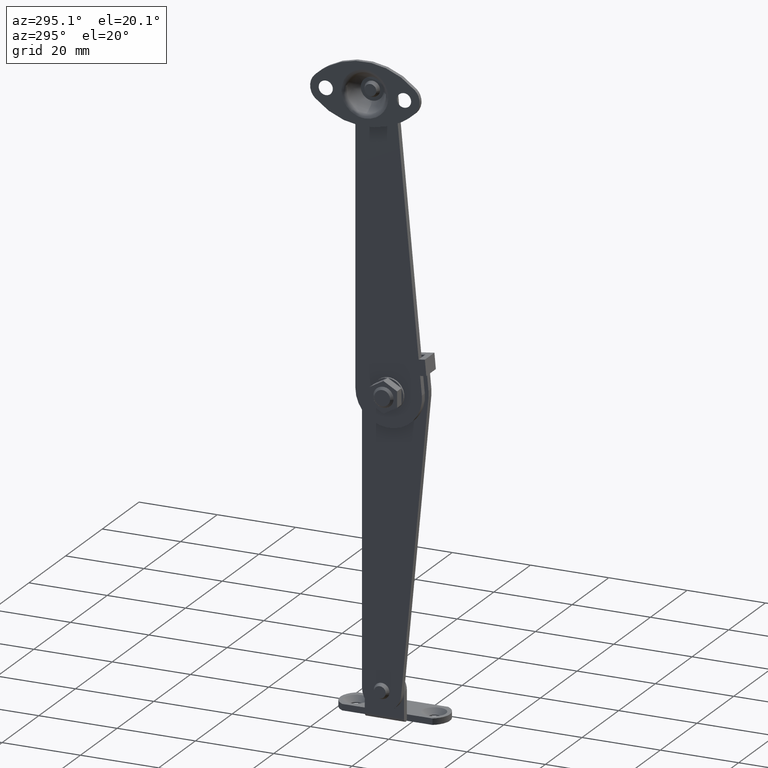
[diagram: clean part render]
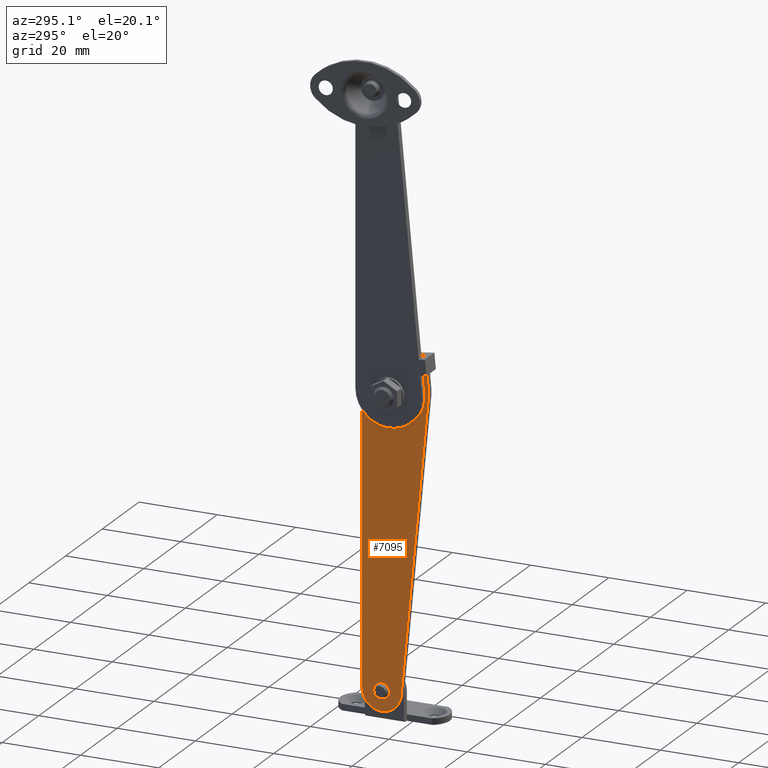
[diagram: same view with one face highlighted and labeled with its STEP entity id]
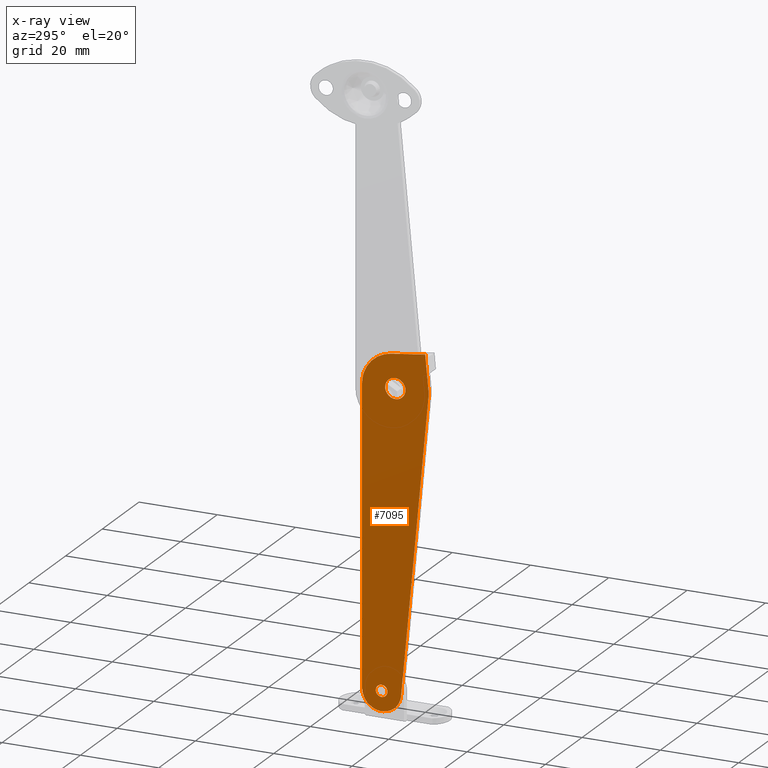
[diagram: x-ray of the same camera — body ghosted, the highlighted face saturated]
A machine part, auxiliary view. The second image highlights one B-rep face of the part: STEP entity #7095.
The next image is the same camera in x-ray: the body ghosted, the highlighted face saturated — about 0% of this face is hidden behind the body in this view.
In plain terms, the highlighted face is a freeform B-spline surface patch.
Its self-contained STEP definition (entity closure, byte-faithful):
#6648=CARTESIAN_POINT('',(3.599991000000190,0.0,-2.600000000000000));
#6649=VERTEX_POINT('',#6648);
#6650=CARTESIAN_POINT('',(3.599991000000190,2.591985067631913,-0.203993649835449));
#6651=VERTEX_POINT('',#6650);
#6652=CARTESIAN_POINT('',(3.599991000000190,0.0,-2.600000000000000));
#6653=CARTESIAN_POINT('',(3.599991000000189,2.403415276557045,-2.600000000000001));
#6654=CARTESIAN_POINT('',(3.599991000000190,2.591985067631913,-0.203993649835449));
#6662=(BOUNDED_CURVE()B_SPLINE_CURVE(2,(#6652,#6653,#6654),.UNSPECIFIED.,.F.,.U.)B_SPLINE_CURVE_WITH_KNOTS((3,3),(0.0,0.236331300508027),.UNSPECIFIED.)CURVE()GEOMETRIC_REPRESENTATION_ITEM()RATIONAL_B_SPLINE_CURVE((1.0,0.723120658751339,0.969723355911493))REPRESENTATION_ITEM(''));
#6663=EDGE_CURVE('',#6649,#6651,#6662,.T.);
#6665=CARTESIAN_POINT('',(3.599991000000190,-2.591985067631913,0.203993649835449));
#6666=VERTEX_POINT('',#6665);
#6667=CARTESIAN_POINT('',(3.599991000000191,-2.591985067631913,0.203993649835449));
#6668=CARTESIAN_POINT('',(3.599991000000190,-2.600000000000001,0.102154279167369));
#6669=CARTESIAN_POINT('',(3.599991000000190,-2.600000000000000,0.0));
#6670=CARTESIAN_POINT('',(3.599991000000190,-2.600000000000001,-2.600000000000001));
#6671=CARTESIAN_POINT('',(3.599991000000190,0.0,-2.600000000000000));
#6679=(BOUNDED_CURVE()B_SPLINE_CURVE(2,(#6667,#6668,#6669,#6670,#6671),.UNSPECIFIED.,.F.,.U.)B_SPLINE_CURVE_WITH_KNOTS((3,2,3),(0.736331300508027,0.750000000000000,1.0),.UNSPECIFIED.)CURVE()GEOMETRIC_REPRESENTATION_ITEM()RATIONAL_B_SPLINE_CURVE((0.969723355911493,0.983986122435209,1.0,0.707106781186548,1.0))REPRESENTATION_ITEM(''));
#6680=EDGE_CURVE('',#6666,#6649,#6679,.T.);
#6747=CARTESIAN_POINT('',(3.599991000000190,0.0,2.600000000000000));
#6748=VERTEX_POINT('',#6747);
#6749=CARTESIAN_POINT('',(3.599991000000189,2.591985067631913,-0.203993649835449));
#6750=CARTESIAN_POINT('',(3.599991000000190,2.600000000000001,-0.102154279167369));
#6751=CARTESIAN_POINT('',(3.599991000000190,2.600000000000000,0.0));
#6752=CARTESIAN_POINT('',(3.599991000000190,2.600000000000001,2.600000000000001));
#6753=CARTESIAN_POINT('',(3.599991000000190,0.0,2.600000000000000));
#6761=(BOUNDED_CURVE()B_SPLINE_CURVE(2,(#6749,#6750,#6751,#6752,#6753),.UNSPECIFIED.,.F.,.U.)B_SPLINE_CURVE_WITH_KNOTS((3,2,3),(0.236331300508027,0.250000000000000,0.500000000000000),.UNSPECIFIED.)CURVE()GEOMETRIC_REPRESENTATION_ITEM()RATIONAL_B_SPLINE_CURVE((0.969723355911493,0.983986122435209,1.0,0.707106781186548,1.0))REPRESENTATION_ITEM(''));
#6762=EDGE_CURVE('',#6651,#6748,#6761,.T.);
#6796=CARTESIAN_POINT('',(3.599991000000190,0.0,2.600000000000000));
#6797=CARTESIAN_POINT('',(3.599991000000189,-2.403415276557029,2.600000000000000));
#6798=CARTESIAN_POINT('',(3.599991000000191,-2.591985067631913,0.203993649835449));
#6806=(BOUNDED_CURVE()B_SPLINE_CURVE(2,(#6796,#6797,#6798),.UNSPECIFIED.,.F.,.U.)B_SPLINE_CURVE_WITH_KNOTS((3,3),(0.500000000000000,0.736331300508026),.UNSPECIFIED.)CURVE()GEOMETRIC_REPRESENTATION_ITEM()RATIONAL_B_SPLINE_CURVE((1.0,0.723120658751340,0.969723355911490))REPRESENTATION_ITEM(''));
#6807=EDGE_CURVE('',#6748,#6666,#6806,.T.);
#6830=CARTESIAN_POINT('',(3.599991000000190,3.500003000000000,-76.500000000000000));
#6831=VERTEX_POINT('',#6830);
#6832=CARTESIAN_POINT('',(3.599991000000189,4.995379000587864,-75.117688643742042));
#6833=VERTEX_POINT('',#6832);
#6834=CARTESIAN_POINT('',(3.599991000000190,3.500003000000000,-76.500000000000000));
#6835=CARTESIAN_POINT('',(3.599991000000189,4.886588737207747,-76.499999999999986));
#6836=CARTESIAN_POINT('',(3.599991000000190,4.995379000587864,-75.117688643742042));
#6844=(BOUNDED_CURVE()B_SPLINE_CURVE(2,(#6834,#6835,#6836),.UNSPECIFIED.,.F.,.U.)B_SPLINE_CURVE_WITH_KNOTS((3,3),(0.0,0.236331300598311),.UNSPECIFIED.)CURVE()GEOMETRIC_REPRESENTATION_ITEM()RATIONAL_B_SPLINE_CURVE((1.0,0.723120658645564,0.969723356099909))REPRESENTATION_ITEM(''));
#6845=EDGE_CURVE('',#6831,#6833,#6844,.T.);
#6847=CARTESIAN_POINT('',(3.599991000000190,2.004626999412135,-74.882311356257958));
#6848=VERTEX_POINT('',#6847);
#6849=CARTESIAN_POINT('',(3.599991000000190,2.004626999412135,-74.882311356257958));
#6850=CARTESIAN_POINT('',(3.599991000000190,2.000003000000000,-74.941064839337514));
#6851=CARTESIAN_POINT('',(3.599991000000190,2.000003000000000,-75.0));
#6852=CARTESIAN_POINT('',(3.599991000000190,2.000003000000000,-76.500000000000000));
#6853=CARTESIAN_POINT('',(3.599991000000190,3.500003000000000,-76.500000000000000));
#6861=(BOUNDED_CURVE()B_SPLINE_CURVE(2,(#6849,#6850,#6851,#6852,#6853),.UNSPECIFIED.,.F.,.U.)B_SPLINE_CURVE_WITH_KNOTS((3,2,3),(0.736331300598313,0.750000000000000,1.0),.UNSPECIFIED.)CURVE()GEOMETRIC_REPRESENTATION_ITEM()RATIONAL_B_SPLINE_CURVE((0.969723356099913,0.983986122540986,1.0,0.707106781186548,1.0))REPRESENTATION_ITEM(''));
#6862=EDGE_CURVE('',#6848,#6831,#6861,.T.);
#6929=CARTESIAN_POINT('',(3.599991000000190,3.500003000000000,-73.500000000000000));
#6930=VERTEX_POINT('',#6929);
#6931=CARTESIAN_POINT('',(3.599991000000189,4.995379000587864,-75.117688643742042));
#6932=CARTESIAN_POINT('',(3.599991000000190,5.000003000000001,-75.058935160662500));
#6933=CARTESIAN_POINT('',(3.599991000000190,5.000003000000000,-75.0));
#6934=CARTESIAN_POINT('',(3.599991000000190,5.000003000000000,-73.500000000000000));
#6935=CARTESIAN_POINT('',(3.599991000000190,3.500003000000000,-73.500000000000000));
#6943=(BOUNDED_CURVE()B_SPLINE_CURVE(2,(#6931,#6932,#6933,#6934,#6935),.UNSPECIFIED.,.F.,.U.)B_SPLINE_CURVE_WITH_KNOTS((3,2,3),(0.236331300598311,0.250000000000000,0.500000000000000),.UNSPECIFIED.)CURVE()GEOMETRIC_REPRESENTATION_ITEM()RATIONAL_B_SPLINE_CURVE((0.969723356099909,0.983986122540983,1.0,0.707106781186548,1.0))REPRESENTATION_ITEM(''));
#6944=EDGE_CURVE('',#6833,#6930,#6943,.T.);
#6978=CARTESIAN_POINT('',(3.599991000000190,3.500003000000000,-73.500000000000000));
#6979=CARTESIAN_POINT('',(3.599991000000190,2.113417262792230,-73.500000000000000));
#6980=CARTESIAN_POINT('',(3.599991000000190,2.004626999412135,-74.882311356257958));
#6988=(BOUNDED_CURVE()B_SPLINE_CURVE(2,(#6978,#6979,#6980),.UNSPECIFIED.,.F.,.U.)B_SPLINE_CURVE_WITH_KNOTS((3,3),(0.500000000000000,0.736331300598314),.UNSPECIFIED.)CURVE()GEOMETRIC_REPRESENTATION_ITEM()RATIONAL_B_SPLINE_CURVE((1.0,0.723120658645561,0.969723356099914))REPRESENTATION_ITEM(''));
#6989=EDGE_CURVE('',#6930,#6848,#6988,.T.);
#6994=CARTESIAN_POINT('',(3.599991000000100,9.349142942526720,-84.466884997134954));
#6995=CARTESIAN_POINT('',(3.599991000000100,-9.349150088843190,-84.466884997134954));
#6996=CARTESIAN_POINT('',(3.599991000000100,9.349142942526720,14.025388798486251));
#6997=CARTESIAN_POINT('',(3.599991000000100,-9.349150088843190,14.025388798486251));
#6998=B_SPLINE_SURFACE_WITH_KNOTS('',1,1,((#6994,#6996),(#6995,#6997)),.UNSPECIFIED.,.F.,.F.,.U.,(2,2),(2,2),(0.0,18.698293031369911),(0.0,98.492273795621202),.UNSPECIFIED.);
#6999=CARTESIAN_POINT('',(3.599991000000080,8.499954011509310,-74.977866710410609));
#7000=VERTEX_POINT('',#6999);
#7001=CARTESIAN_POINT('',(3.599991000000080,-1.478266527776094,-75.465652777093595));
#7002=VERTEX_POINT('',#7001);
#7003=CARTESIAN_POINT('',(3.599991000000080,8.499954011509303,-74.977866710410609));
#7004=CARTESIAN_POINT('',(3.599991000000080,8.521125357407657,-79.760512864836997));
#7005=CARTESIAN_POINT('',(3.599991000000080,3.744136843202405,-79.994036310100597));
#7006=CARTESIAN_POINT('',(3.599991000000080,-1.032851671002847,-80.227559755364211));
#7007=CARTESIAN_POINT('',(3.599991000000080,-1.478266527776101,-75.465652777093595));
#7015=(BOUNDED_CURVE()B_SPLINE_CURVE(2,(#7003,#7004,#7005,#7006,#7007),.UNSPECIFIED.,.F.,.U.)B_SPLINE_CURVE_WITH_KNOTS((3,2,3),(0.0,0.500000000000000,1.0),.UNSPECIFIED.)CURVE()GEOMETRIC_REPRESENTATION_ITEM()RATIONAL_B_SPLINE_CURVE((1.0,0.722635770003003,1.0,0.722635770003003,1.0))REPRESENTATION_ITEM(''));
#7016=EDGE_CURVE('',#7000,#7002,#7015,.T.);
#7017=ORIENTED_EDGE('',*,*,#7016,.T.);
#7018=CARTESIAN_POINT('',(3.599991000000080,-8.463058197219521,-0.791609721059230));
#7019=VERTEX_POINT('',#7018);
#7020=CARTESIAN_POINT('',(3.599991000000080,-1.478266527776094,-75.465652777093595));
#7021=CARTESIAN_POINT('',(3.599991000000080,-8.463058197219521,-0.791609721059230));
#7022=QUASI_UNIFORM_CURVE('',1,(#7020,#7021),.UNSPECIFIED.,.F.,.U.);
#7023=EDGE_CURVE('',#7002,#7019,#7022,.T.);
#7024=ORIENTED_EDGE('',*,*,#7023,.T.);
#7025=CARTESIAN_POINT('',(3.599991000000080,-8.463057776861380,0.791614215073323));
#7026=VERTEX_POINT('',#7025);
#7027=CARTESIAN_POINT('',(3.599991000000080,-8.463058197219521,-0.791609721059234));
#7028=CARTESIAN_POINT('',(3.599991000000080,-8.537103268184140,0.000002266666636));
#7029=CARTESIAN_POINT('',(3.599991000000080,-8.463057776861378,0.791614215073320));
#7037=(BOUNDED_CURVE()B_SPLINE_CURVE(2,(#7027,#7028,#7029),.UNSPECIFIED.,.F.,.U.)CURVE()GEOMETRIC_REPRESENTATION_ITEM()QUASI_UNIFORM_CURVE()RATIONAL_B_SPLINE_CURVE((1.0,0.995653880828323,1.0))REPRESENTATION_ITEM(''));
#7038=EDGE_CURVE('',#7019,#7026,#7037,.T.);
#7039=ORIENTED_EDGE('',*,*,#7038,.T.);
#7040=CARTESIAN_POINT('',(3.599991000000090,-8.016328615115949,5.567545008724150));
#7041=VERTEX_POINT('',#7040);
#7042=CARTESIAN_POINT('',(3.599991000000080,-8.463057776861380,0.791614215073323));
#7043=CARTESIAN_POINT('',(3.599991000000090,-8.016328615115949,5.567545008724150));
#7044=QUASI_UNIFORM_CURVE('',1,(#7042,#7043),.UNSPECIFIED.,.F.,.U.);
#7045=EDGE_CURVE('',#7026,#7041,#7044,.T.);
#7046=ORIENTED_EDGE('',*,*,#7045,.T.);
#7047=CARTESIAN_POINT('',(3.599991000000080,-7.643582127443380,9.552535426061398));
#7048=VERTEX_POINT('',#7047);
#7049=CARTESIAN_POINT('',(3.599991000000090,-8.016328615115949,5.567545008724150));
#7050=CARTESIAN_POINT('',(3.599991000000080,-7.643582127443380,9.552535426061398));
#7051=QUASI_UNIFORM_CURVE('',1,(#7049,#7050),.UNSPECIFIED.,.F.,.U.);
#7052=EDGE_CURVE('',#7041,#7048,#7051,.T.);
#7053=ORIENTED_EDGE('',*,*,#7052,.T.);
#7054=CARTESIAN_POINT('',(3.599991000000080,1.083766832788528,8.430636021495001));
#7055=VERTEX_POINT('',#7054);
#7056=CARTESIAN_POINT('',(3.599991000000080,-7.643582127443380,9.552535426061398));
#7057=CARTESIAN_POINT('',(3.599991000000080,1.083766832788528,8.430636021495001));
#7058=QUASI_UNIFORM_CURVE('',1,(#7056,#7057),.UNSPECIFIED.,.F.,.U.);
#7059=EDGE_CURVE('',#7048,#7055,#7058,.T.);
#7060=ORIENTED_EDGE('',*,*,#7059,.T.);
#7061=CARTESIAN_POINT('',(3.599991000000080,8.499993005675012,0.010904287041642));
#7062=VERTEX_POINT('',#7061);
#7063=CARTESIAN_POINT('',(3.599991000000080,1.083766832788525,8.430636021494999));
#7064=CARTESIAN_POINT('',(3.599991000000080,8.490432091761075,7.478510458684190));
#7065=CARTESIAN_POINT('',(3.599991000000080,8.499993005675009,0.010904287041642));
#7073=(BOUNDED_CURVE()B_SPLINE_CURVE(2,(#7063,#7064,#7065),.UNSPECIFIED.,.F.,.U.)CURVE()GEOMETRIC_REPRESENTATION_ITEM()QUASI_UNIFORM_CURVE()RATIONAL_B_SPLINE_CURVE((1.0,0.751255759554554,1.0))REPRESENTATION_ITEM(''));
#7074=EDGE_CURVE('',#7055,#7062,#7073,.T.);
#7075=ORIENTED_EDGE('',*,*,#7074,.T.);
#7076=CARTESIAN_POINT('',(3.599991000000080,8.499993005675012,0.010904287041642));
#7077=CARTESIAN_POINT('',(3.599991000000080,8.499954011509310,-74.977866710410609));
#7078=QUASI_UNIFORM_CURVE('',1,(#7076,#7077),.UNSPECIFIED.,.F.,.U.);
#7079=EDGE_CURVE('',#7062,#7000,#7078,.T.);
#7080=ORIENTED_EDGE('',*,*,#7079,.T.);
#7081=EDGE_LOOP('',(#7017,#7024,#7039,#7046,#7053,#7060,#7075,#7080));
#7082=FACE_OUTER_BOUND('',#7081,.T.);
#7083=ORIENTED_EDGE('',*,*,#6989,.T.);
#7084=ORIENTED_EDGE('',*,*,#6862,.T.);
#7085=ORIENTED_EDGE('',*,*,#6845,.T.);
#7086=ORIENTED_EDGE('',*,*,#6944,.T.);
#7087=EDGE_LOOP('',(#7083,#7084,#7085,#7086));
#7088=FACE_BOUND('',#7087,.T.);
#7089=ORIENTED_EDGE('',*,*,#6807,.T.);
#7090=ORIENTED_EDGE('',*,*,#6680,.T.);
#7091=ORIENTED_EDGE('',*,*,#6663,.T.);
#7092=ORIENTED_EDGE('',*,*,#6762,.T.);
#7093=EDGE_LOOP('',(#7089,#7090,#7091,#7092));
#7094=FACE_BOUND('',#7093,.T.);
#7095=ADVANCED_FACE('',(#7082,#7088,#7094),#6998,.T.);